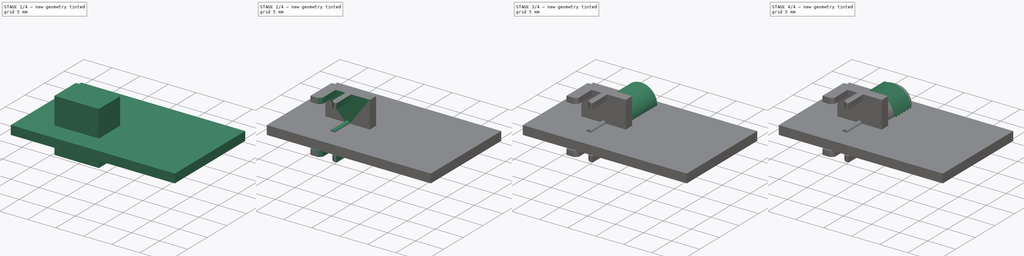
[diagram: build sequence overview — one tinted view per stage of 4, left to right]
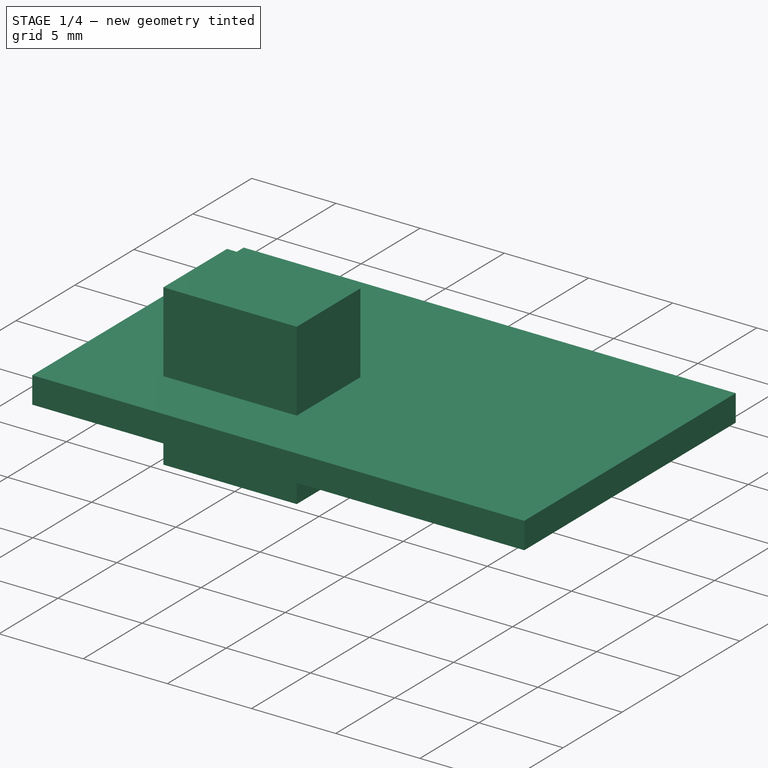
[diagram: stage 1 of 4 — iso view after this stage's code; geometry added in this stage tinted green]
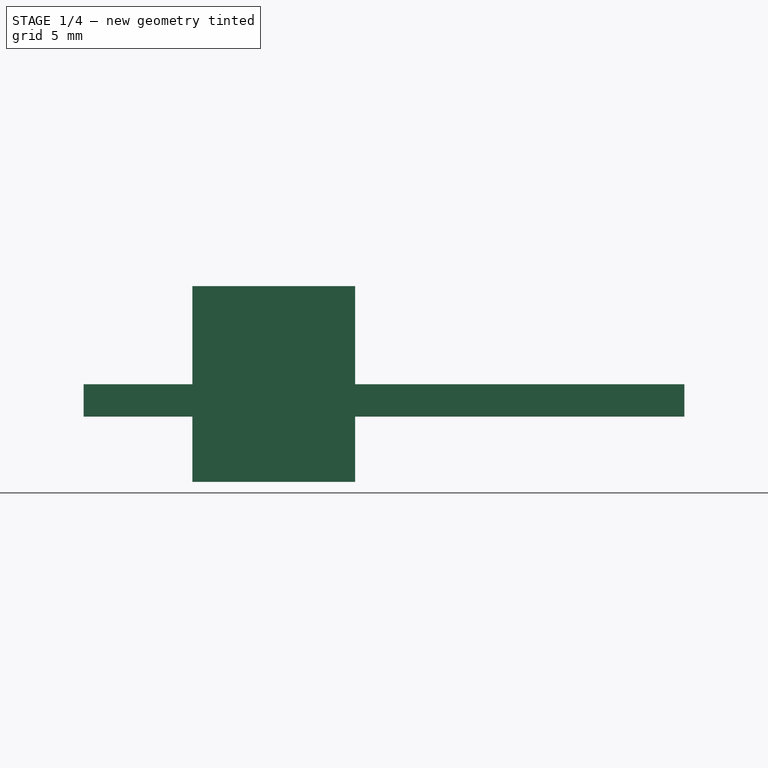
[diagram: stage 1 of 4 — front view after this stage's code; geometry added in this stage tinted green]
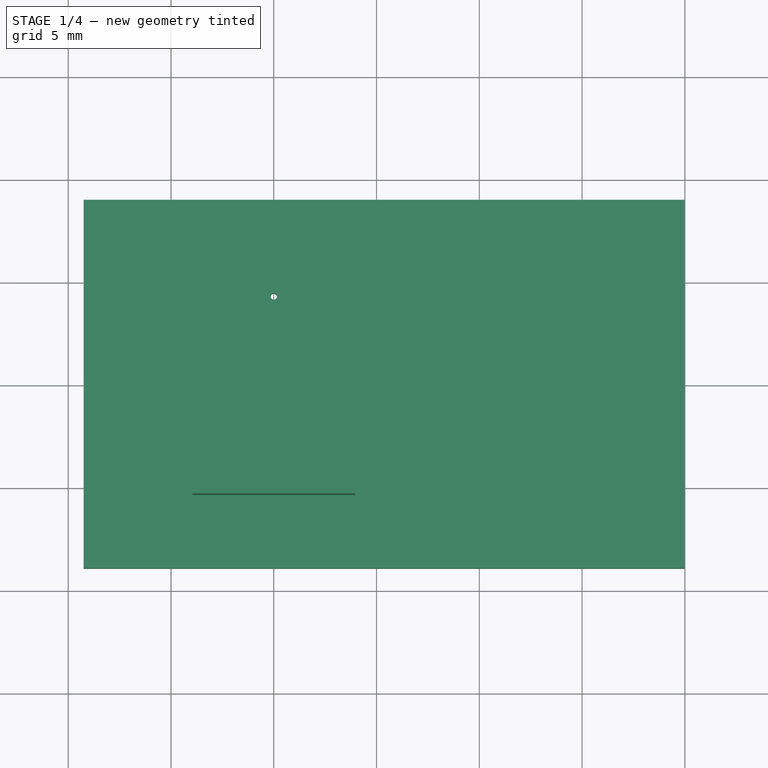
[diagram: stage 1 of 4 — top view after this stage's code; geometry added in this stage tinted green]
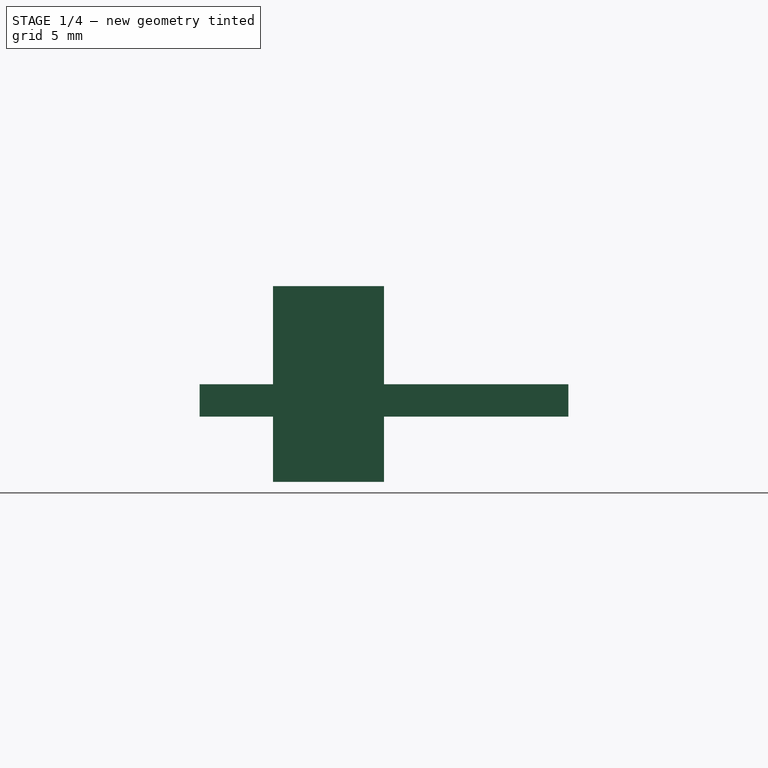
[diagram: stage 1 of 4 — right view after this stage's code; geometry added in this stage tinted green]
FCSTD DOCUMENT  (FreeCAD 0.19R24415 (Git))
Label: sma_edge_mount
License: All rights reserved
LicenseURL: http://en.wikipedia.org/wiki/All_rights_reserved
objects: Sketcher::SketchObject×6, Part::FeaturePython×6, PartDesign::Pad×3, PartDesign::Chamfer×3, Part::Feature×3, PartDesign::Pocket×2, PartDesign::Body×2, PartDesign::AdditiveHelix×1, App::DocumentObjectGroup×1
note: 35 computed .brp shape members not serialized (recipe doc carries the construction recipe); baked Part::Feature solids carry a one-line shape summary decoded from their .brp

FEATURE [Sketcher::SketchObject] Sketch001
  FullyConstrained = true
  MapMode = 5
  Placement = pos=(0,0,0) rot=(1,0,0;1.5708rad)
  Support = -> [XZ_Plane]
  sketch-geometry (4):
    g0: LineSegment StartX=-3.96 StartY=4.76 StartZ=0 EndX=3.96 EndY=4.76 EndZ=0
    g1: LineSegment StartX=3.96 StartY=4.76 StartZ=0 EndX=3.96 EndY=-4.76 EndZ=0
    g2: LineSegment StartX=3.96 StartY=-4.76 StartZ=0 EndX=-3.96 EndY=-4.76 EndZ=0
    g3: LineSegment StartX=-3.96 StartY=-4.76 StartZ=0 EndX=-3.96 EndY=4.76 EndZ=0
  constraints (10):
    c: Coincident(g0,g1)
    c: Coincident(g1,g2)
    c: Coincident(g2,g3)
    c: Coincident(g3,g0)
    c: Horizontal(g0)
    c: Vertical(g3)
    c: Symmetric(g1,g2,g-2)
    c: Symmetric(g0,g1,g-1)
    c: Distance(g3) = 9.52
    c: Distance(g2) = 7.92
FEATURE [PartDesign::Pad] Pad
  Direction = (1,1,1)
  Length = 5.4
  Length2 = 100
  Placement = pos=(0,0,0) rot=(1,0,0;1.5708rad)
  Profile = -> Sketch001
  Type = 0
FEATURE [PartDesign::Body] Body
  Group = -> [Sketch001,Pad,Sketch002,Pocket,Chamfer,Sketch,Pad001,Sketch004,Pad002,Sketch005,Pocket001,Chamfer002]
  Origin = -> Origin
  Tip = -> Chamfer002
FEATURE [Part::FeaturePython] FCrtYd_lines  label="FCrtYd"  # a2plus imported part (geometry in sourceFile) (typed FeaturePython)
  fixedPosition = true
FEATURE [Part::FeaturePython] BCrtYd_lines  label="BCrtYd"  # a2plus imported part (geometry in sourceFile) (typed FeaturePython)
  Placement = pos=(0,0,-1.6) rot=(0,0,1;0rad)
  fixedPosition = true
FEATURE [Part::FeaturePython] FFab_lines  label="FFab"  # a2plus imported part (geometry in sourceFile) (typed FeaturePython)
  fixedPosition = true
FEATURE [Part::FeaturePython] FSilk_lines  label="FrontSilk"  # a2plus imported part (geometry in sourceFile) (typed FeaturePython)
  fixedPosition = true
FEATURE [Part::FeaturePython] THPs  label="PTHs"  # a2plus imported part (geometry in sourceFile) (typed FeaturePython)
  fixedPosition = true
FEATURE [Part::Feature] Shape001003  label="TopPads"
  shape: bbox 5.6 x 10.12 x 0.01 mm, 20 faces, 3 solids (baked)
FEATURE [Part::Feature] Shape001004  label="BotPads"
  shape: bbox 4.9 x 10.12 x 0.01 mm, 16 faces, 2 solids (baked)
FEATURE [Part::FeaturePython] newPCB  label="Pcb"  # a2plus imported part (geometry in sourceFile) (typed FeaturePython)
  fixedPosition = true
FEATURE [App::DocumentObjectGroup] SMA_EdgeMount_fp
  Group = -> [FCrtYd_lines,FFab_lines,FSilk_lines,BCrtYd_lines,Shape001003,Shape001004,THPs,newPCB]
FEATURE [Part::Feature] Shape  label="SMA_EdgeMount"
  shape: bbox 13.3 x 9.52 x 7.92 mm, 58 faces, 2 solids (baked)
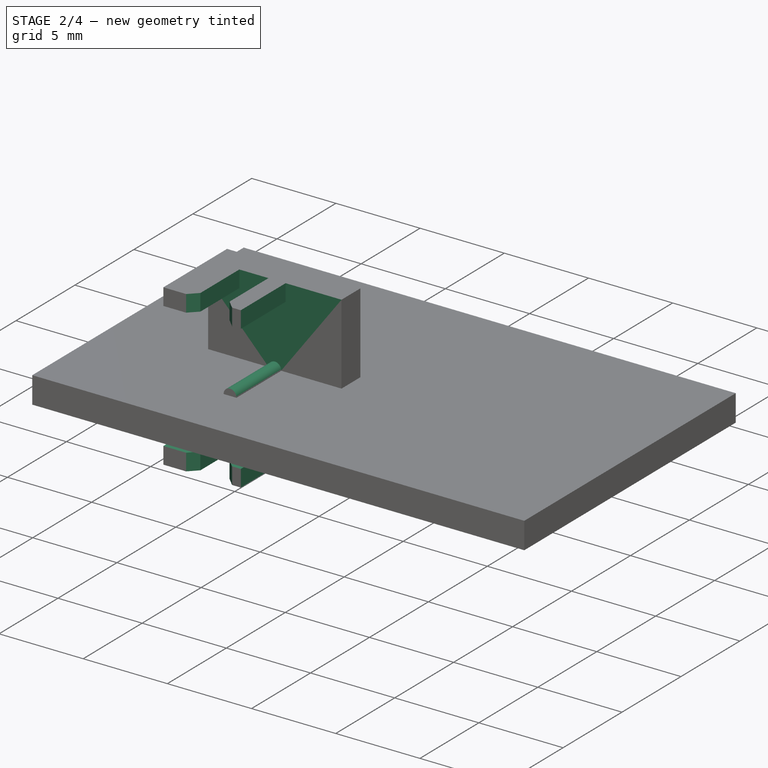
[diagram: stage 2 of 4 — iso view after this stage's code; geometry added in this stage tinted green]
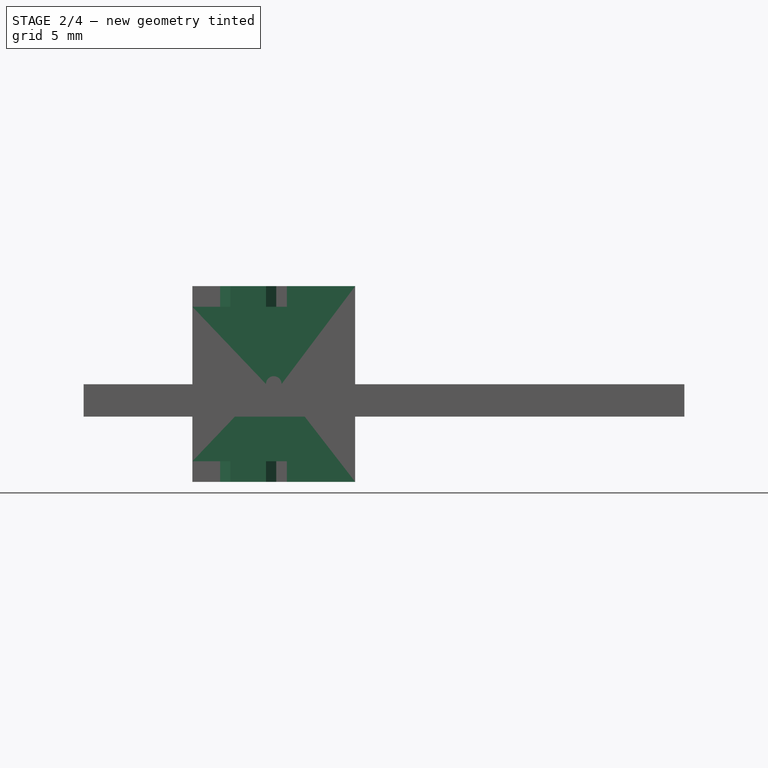
[diagram: stage 2 of 4 — front view after this stage's code; geometry added in this stage tinted green]
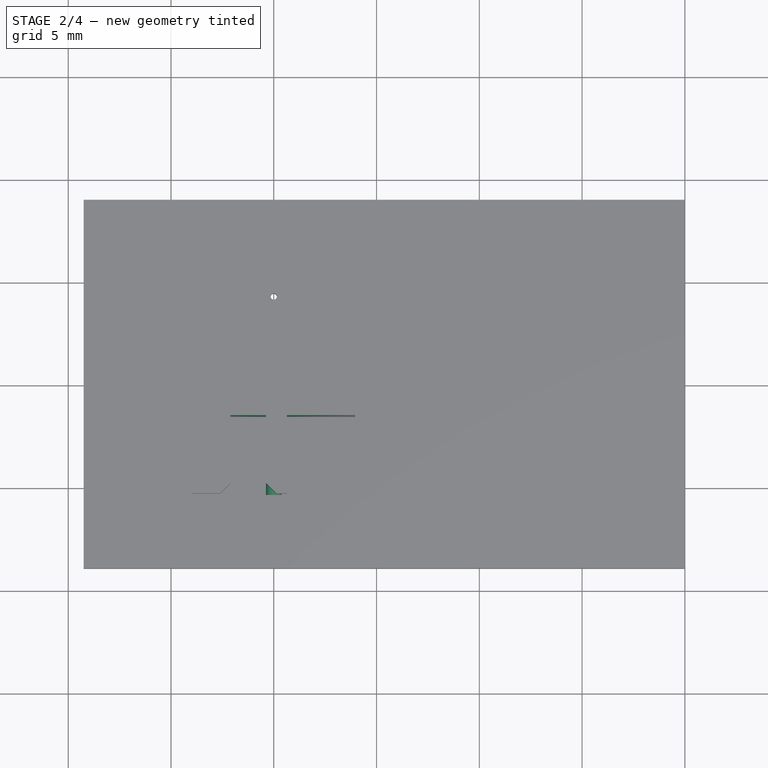
[diagram: stage 2 of 4 — top view after this stage's code; geometry added in this stage tinted green]
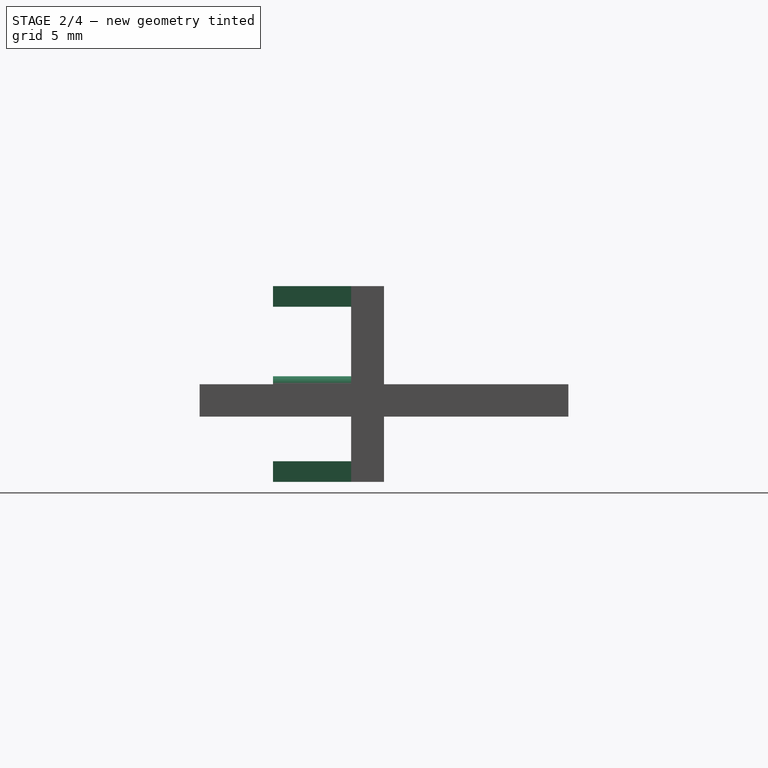
[diagram: stage 2 of 4 — right view after this stage's code; geometry added in this stage tinted green]
FEATURE [Sketcher::SketchObject] Sketch002
  ExternalGeometry = -> [Pad]
  FullyConstrained = true
  MapMode = 5
  Placement = pos=(0,-5.4,3.6e-15) rot=(1,0,0;1.5708rad)
  Support = -> [Pad]
  sketch-geometry (16):
    g0: LineSegment StartX=-3.96 StartY=3.76 StartZ=0 EndX=-2.11 EndY=3.76 EndZ=0
    g1: LineSegment StartX=-2.11 StartY=3.76 StartZ=0 EndX=-2.11 EndY=4.76 EndZ=0
    g2: LineSegment StartX=-2.11 StartY=4.76 StartZ=0 EndX=-0.38 EndY=4.76 EndZ=0
    g3: LineSegment StartX=-0.38 StartY=4.76 StartZ=0 EndX=-0.38 EndY=3.76 EndZ=0
    g4: LineSegment StartX=-0.38 StartY=3.76 StartZ=0 EndX=0.64 EndY=3.76 EndZ=0
    g5: LineSegment StartX=0.64 StartY=3.76 StartZ=0 EndX=0.64 EndY=4.76 EndZ=0
    g6: LineSegment StartX=0.64 StartY=4.76 StartZ=0 EndX=3.96 EndY=4.76 EndZ=0
    g7: LineSegment StartX=3.96 StartY=4.76 StartZ=0 EndX=3.96 EndY=-4.76 EndZ=0
    g8: LineSegment StartX=3.96 StartY=-4.76 StartZ=0 EndX=0.64 EndY=-4.76 EndZ=0
    g9: LineSegment StartX=0.64 StartY=-4.76 StartZ=0 EndX=0.64 EndY=-3.76 EndZ=0
    g10: LineSegment StartX=0.64 StartY=-3.76 StartZ=0 EndX=-0.38 EndY=-3.76 EndZ=0
    g11: LineSegment StartX=-0.38 StartY=-3.76 StartZ=0 EndX=-0.38 EndY=-4.76 EndZ=0
    g12: LineSegment StartX=-0.38 StartY=-4.76 StartZ=0 EndX=-2.11 EndY=-4.76 EndZ=0
    g13: LineSegment StartX=-2.11 StartY=-4.76 StartZ=0 EndX=-2.11 EndY=-3.76 EndZ=0
    g14: LineSegment StartX=-2.11 StartY=-3.76 StartZ=0 EndX=-3.96 EndY=-3.76 EndZ=0
    g15: LineSegment StartX=-3.96 StartY=-3.76 StartZ=0 EndX=-3.96 EndY=3.76 EndZ=0
  constraints (46):
    c: PointOnObject(g0,g-3)
    c: Horizontal(g0)
    c: Coincident(g0,g1)
    c: PointOnObject(g1,g-4)
    c: Vertical(g1)
    c: Coincident(g1,g2)
    c: PointOnObject(g2,g-4)
    c: Coincident(g2,g3)
    c: Vertical(g3)
    c: Coincident(g3,g4)
    c: Coincident(g4,g5)
    c: PointOnObject(g5,g-4)
    c: Vertical(g5)
    c: Coincident(g5,g6)
    c: Coincident(g6,g-5)
    c: Coincident(g6,g7)
    c: Coincident(g7,g-6)
    c: Coincident(g7,g8)
    c: PointOnObject(g8,g-6)
    c: Coincident(g8,g9)
    c: Vertical(g9)
    c: Coincident(g9,g10)
    c: Horizontal(g10)
    c: Coincident(g10,g11)
    c: PointOnObject(g11,g-6)
    c: Vertical(g11)
    c: Coincident(g11,g12)
    c: PointOnObject(g12,g-6)
    c: Coincident(g12,g13)
    c: Vertical(g13)
    c: Coincident(g13,g14)
    c: PointOnObject(g14,g-3)
    c: Coincident(g14,g15)
    c: Coincident(g15,g0)
    c: Horizontal(g14)
    c: Equal(g14,g0)
    c: Equal(g4,g10)
    c: Equal(g11,g13)
    c: Equal(g13,g1)
    c: Equal(g1,g3)
    c: Vertical(g3,g10)
    c: Distance(g4) = 1.02
    c: Distance(g0) = 1.85
    c: Distance(g13) = 1
    c: Distance(g2) = 1.73
    c: Horizontal(g4)
FEATURE [PartDesign::Pocket] Pocket
  BaseFeature = -> Pad
  Length = 3.8
  Length2 = 100
  Placement = pos=(0,0,0) rot=(1,0,0;1.5708rad)
  Profile = -> Sketch002
  Type = 0
FEATURE [PartDesign::Chamfer] Chamfer
  Angle = 45
  Base = -> Pocket [Edge51,Edge53,Edge31,Edge35]
  BaseFeature = -> Pocket
  ChamferType = 0
  FlipDirection = false
  Placement = pos=(0,0,0) rot=(1,0,0;1.5708rad)
  Size = 0.5
  Size2 = 1
  SupportTransform = false
FEATURE [Sketcher::SketchObject] Sketch
  FullyConstrained = true
  MapMode = 5
  Placement = pos=(0,-1.6,1.9e-15) rot=(1,0,0;1.5708rad)
  Support = -> [Chamfer]
  sketch-geometry (1):
    g0: Circle CenterX=0 CenterY=0 CenterZ=0 NormalX=0 NormalY=0 NormalZ=1 AngleXU=0 Radius=0.38
  constraints (2):
    c: Coincident(g0,g-1)
    c: Radius(g0) = 0.38
FEATURE [PartDesign::Pad] Pad001
  BaseFeature = -> Chamfer
  Direction = (1,1,1)
  Length = 10
  Length2 = 100
  Placement = pos=(0,0,0) rot=(1,0,0;1.5708rad)
  Profile = -> Sketch
  Type = 3
  UpToFace = -> Chamfer [Face12]
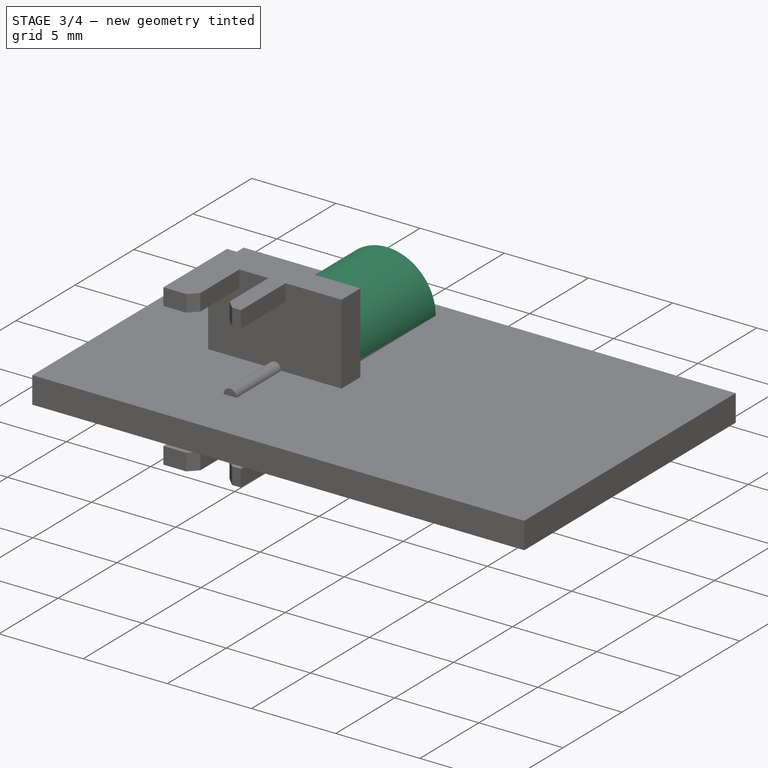
[diagram: stage 3 of 4 — iso view after this stage's code; geometry added in this stage tinted green]
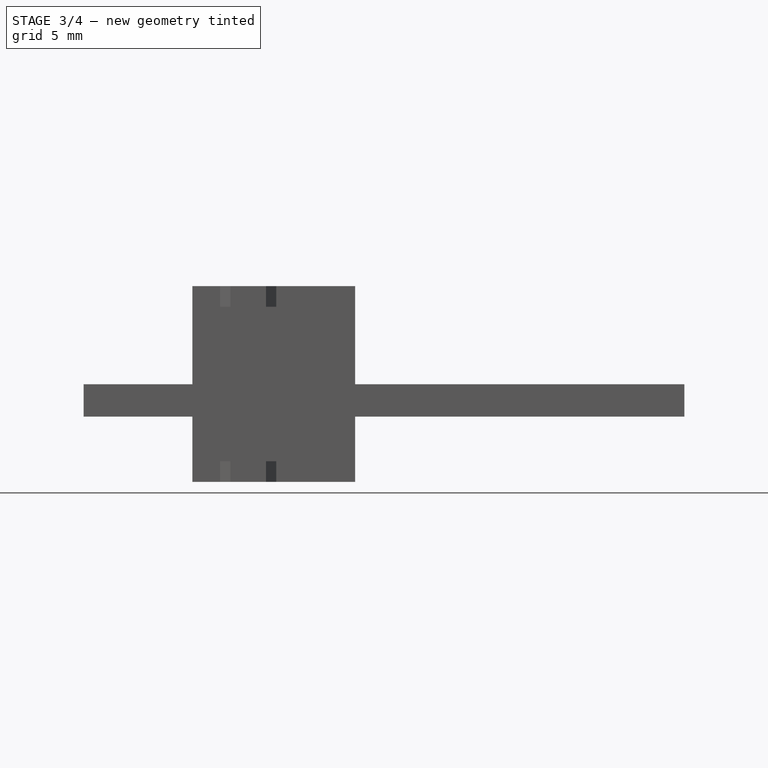
[diagram: stage 3 of 4 — front view after this stage's code; geometry added in this stage tinted green]
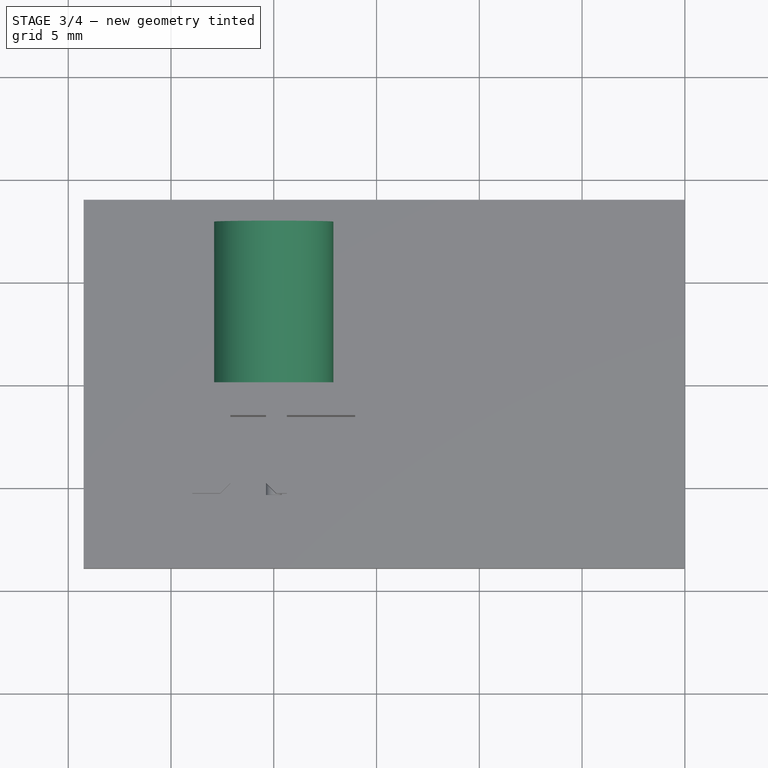
[diagram: stage 3 of 4 — top view after this stage's code; geometry added in this stage tinted green]
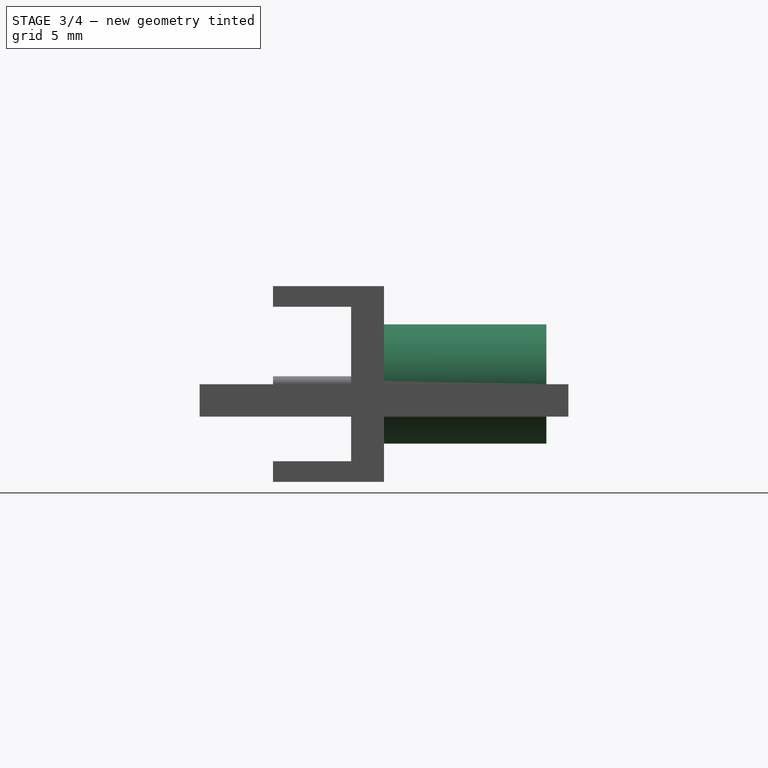
[diagram: stage 3 of 4 — right view after this stage's code; geometry added in this stage tinted green]
FEATURE [Sketcher::SketchObject] Sketch003
  FullyConstrained = true
  MapMode = 5
  Placement = pos=(0,0,0) rot=(0.57735,0.57735,0.57735;2.0944rad)
  Support = -> [YZ_Plane001]
  sketch-geometry (4):
    g0: LineSegment StartX=2.5 StartY=-2.9 StartZ=0 EndX=2.75 EndY=-3.33301 EndZ=0
    g1: LineSegment StartX=2.75 StartY=-3.33301 StartZ=0 EndX=3 EndY=-2.9 EndZ=0
    g2: LineSegment StartX=2.5 StartY=-2.9 StartZ=0 EndX=3 EndY=-2.9 EndZ=0
    g3: LineSegment StartX=0 StartY=-2.9 StartZ=0 EndX=2.5 EndY=-2.9 EndZ=0
  constraints (12):
    c: Coincident(g0,g1)
    c: Equal(g0,g1)
    c: Angle(g1,g0) = 1.0472
    c: Coincident(g2,g0)
    c: Coincident(g2,g1)
    c: Horizontal(g2)
    c: PointOnObject(g3,g-2)
    c: Coincident(g3,g0)
    c: Horizontal(g3)
    c: Distance(g3) = 2.5
    c: Distance(g0) = 0.5
    c: DistanceY(g3,g-1) = 2.9
FEATURE [Sketcher::SketchObject] Sketch004
  FullyConstrained = true
  MapMode = 5
  Placement = pos=(0,0,0) rot=(-1,0,0;1.5708rad)
  sketch-geometry (1):
    g0: Circle CenterX=0 CenterY=0 CenterZ=0 NormalX=0 NormalY=0 NormalZ=1 AngleXU=0 Radius=2.9
  constraints (2):
    c: Coincident(g0,g-1)
    c: Diameter(g0) = 5.8
FEATURE [PartDesign::Pad] Pad002
  BaseFeature = -> Pad001
  Direction = (1,1,1)
  Length = 7.9
  Length2 = 100
  Placement = pos=(0,0,0) rot=(1,0,0;1.5708rad)
  Profile = -> Sketch004
  Type = 0
FEATURE [PartDesign::Body] Body001
  Group = -> [Sketch003,AdditiveHelix,Chamfer001]
  Origin = -> Origin001
  Tip = -> Chamfer001
FEATURE [Sketcher::SketchObject] Sketch005
  FullyConstrained = true
  MapMode = 5
  Placement = pos=(0,7.9,-1.4e-14) rot=(-1,0,0;1.5708rad)
  Support = -> [Pad002]
  sketch-geometry (1):
    g0: Circle CenterX=0 CenterY=0 CenterZ=0 NormalX=0 NormalY=0 NormalZ=1 AngleXU=0 Radius=2.3
  constraints (2):
    c: Coincident(g0,g-1)
    c: Diameter(g0) = 4.6
FEATURE [PartDesign::Pocket] Pocket001
  BaseFeature = -> Pad002
  Length = 2
  Length2 = 100
  Placement = pos=(0,0,0) rot=(1,0,0;1.5708rad)
  Profile = -> Sketch005
  Type = 0
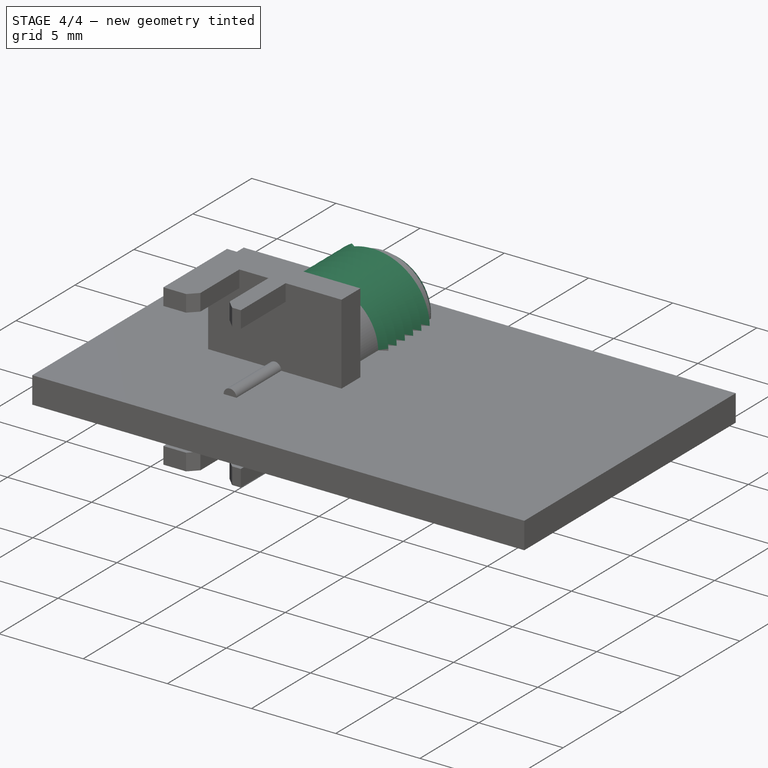
[diagram: stage 4 of 4 — iso view after this stage's code; geometry added in this stage tinted green]
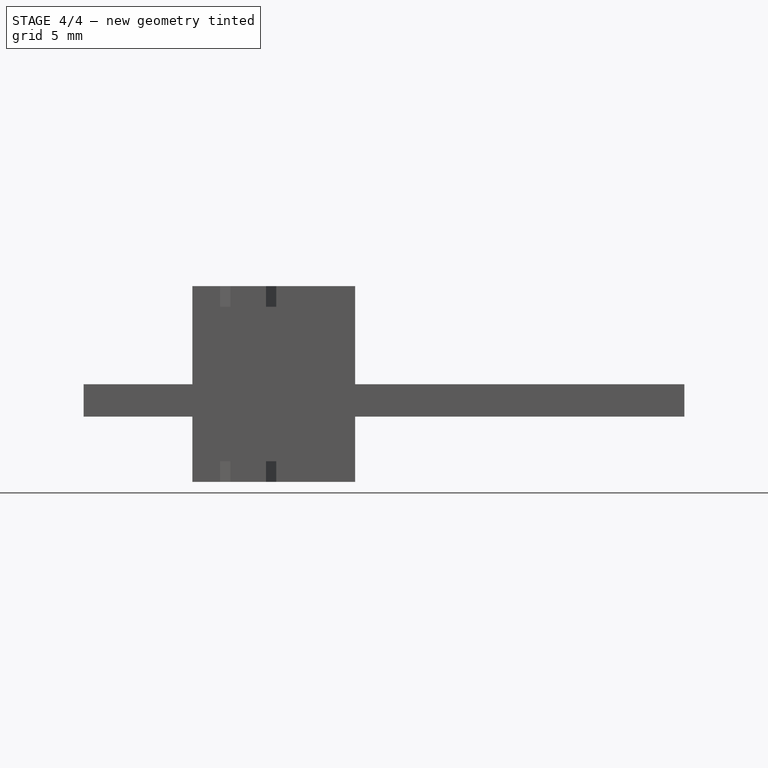
[diagram: stage 4 of 4 — front view after this stage's code; geometry added in this stage tinted green]
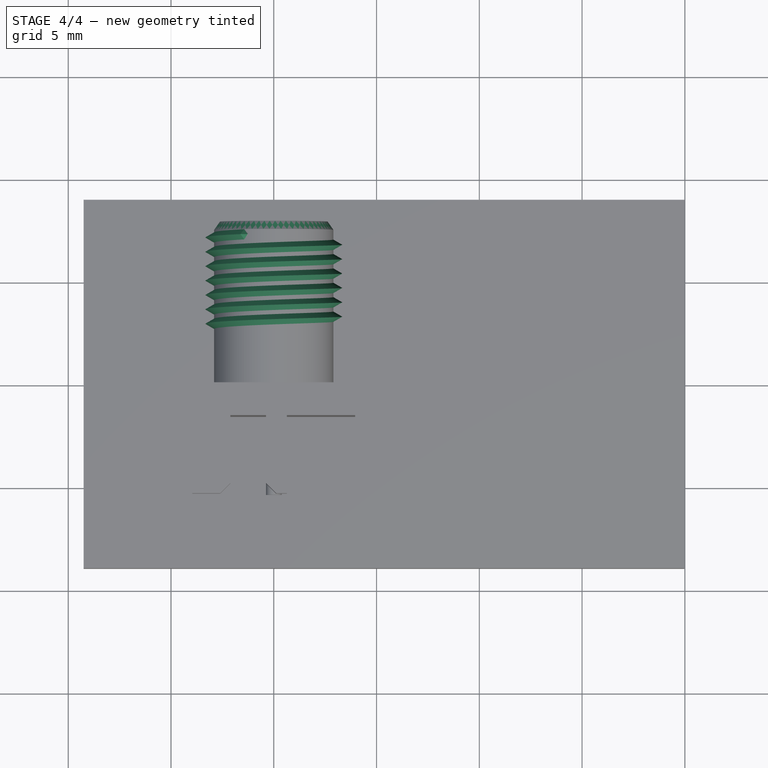
[diagram: stage 4 of 4 — top view after this stage's code; geometry added in this stage tinted green]
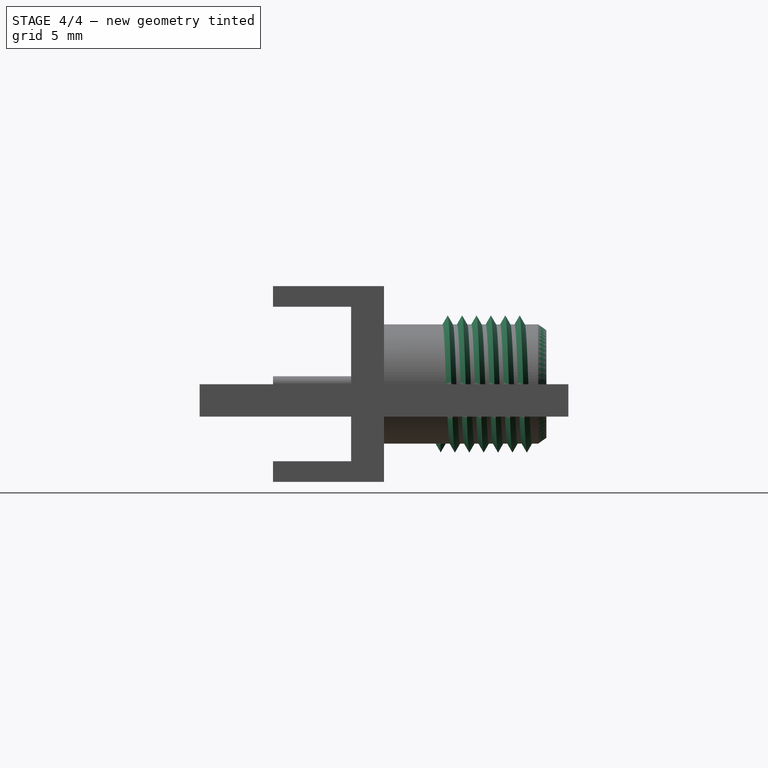
[diagram: stage 4 of 4 — right view after this stage's code; geometry added in this stage tinted green]
FEATURE [PartDesign::AdditiveHelix] AdditiveHelix
  Angle = 0
  Axis = (1e-16,1,-1e-16)
  Base = (0,0,0)
  HasBeenEdited = true
  Height = 4.5
  LeftHanded = false
  Mode = 0
  Outside = false
  Pitch = 0.7
  Placement = pos=(0,0,0) rot=(0.57735,0.57735,0.57735;2.0944rad)
  Profile = -> Sketch003
  ReferenceAxis = -> Y_Axis001
  Turns = 6.42857
FEATURE [PartDesign::Chamfer] Chamfer001
  Angle = 45
  Base = -> AdditiveHelix [Edge2,Edge1,Edge42,Edge43]
  BaseFeature = -> AdditiveHelix
  ChamferType = 0
  FlipDirection = false
  Placement = pos=(0,0,0) rot=(0.57735,0.57735,0.57735;2.0944rad)
  Size = 0.2
  Size2 = 1
  SupportTransform = false
FEATURE [PartDesign::Chamfer] Chamfer002
  Angle = 35
  Base = -> Pocket001 [Edge70]
  BaseFeature = -> Pocket001
  ChamferType = 2
  FlipDirection = false
  Placement = pos=(0,0,0) rot=(1,0,0;1.5708rad)
  Size = 0.4
  Size2 = 1
  SupportTransform = false
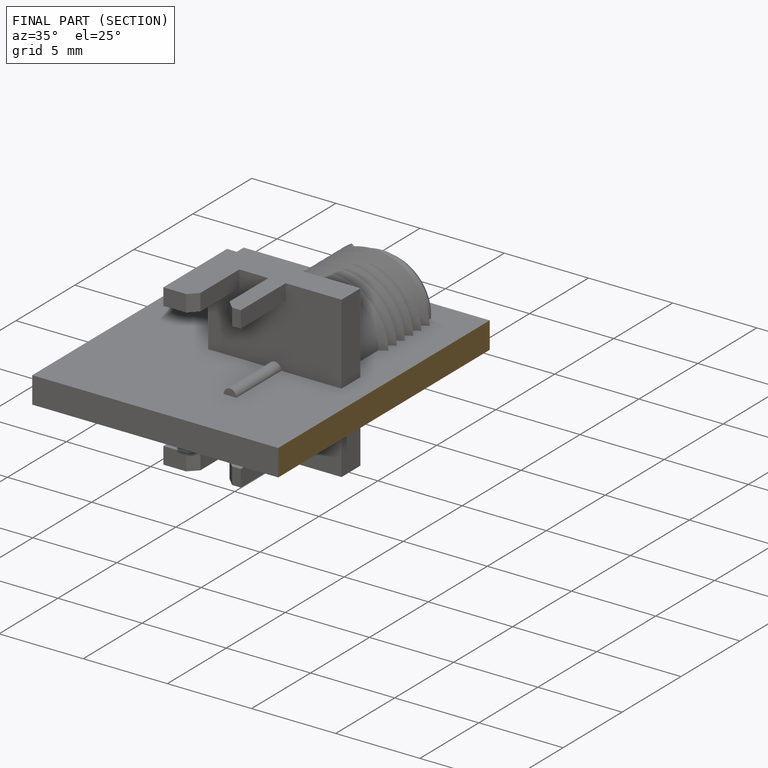
[diagram: finished part — half-section view (interior)]
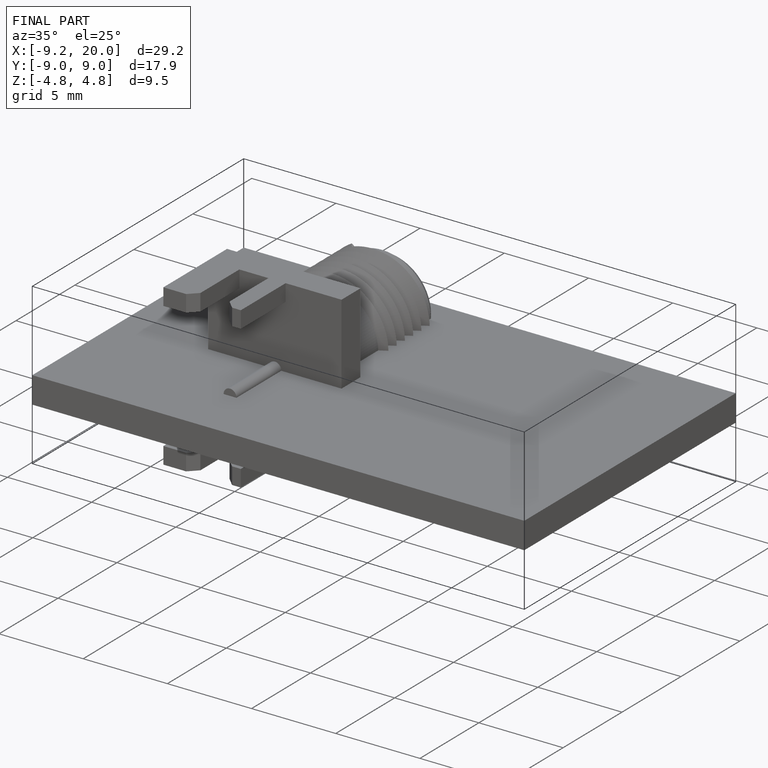
[diagram: finished part — iso view with bounding-box wireframe]
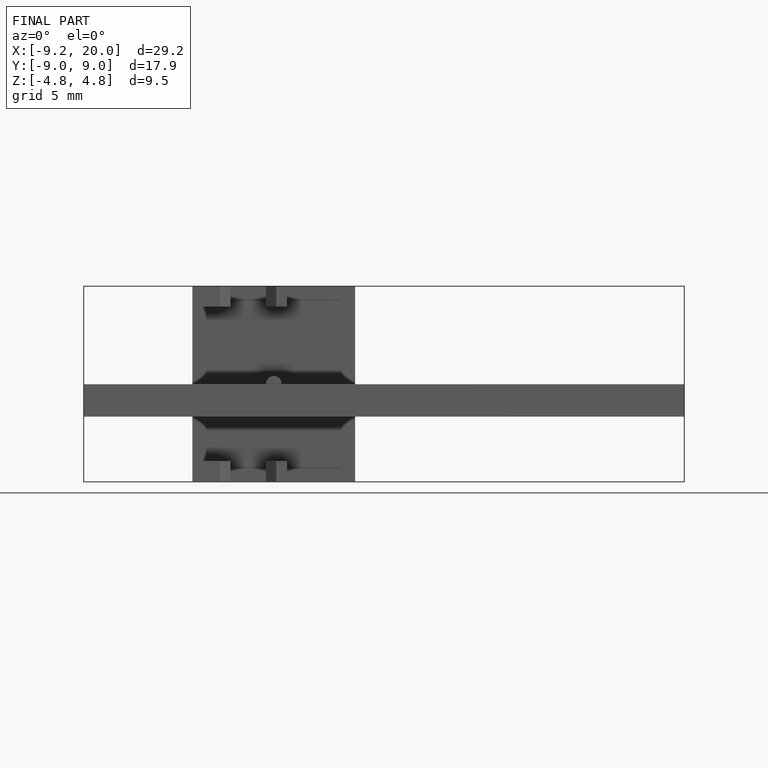
[diagram: finished part — front view with bounding-box wireframe]
